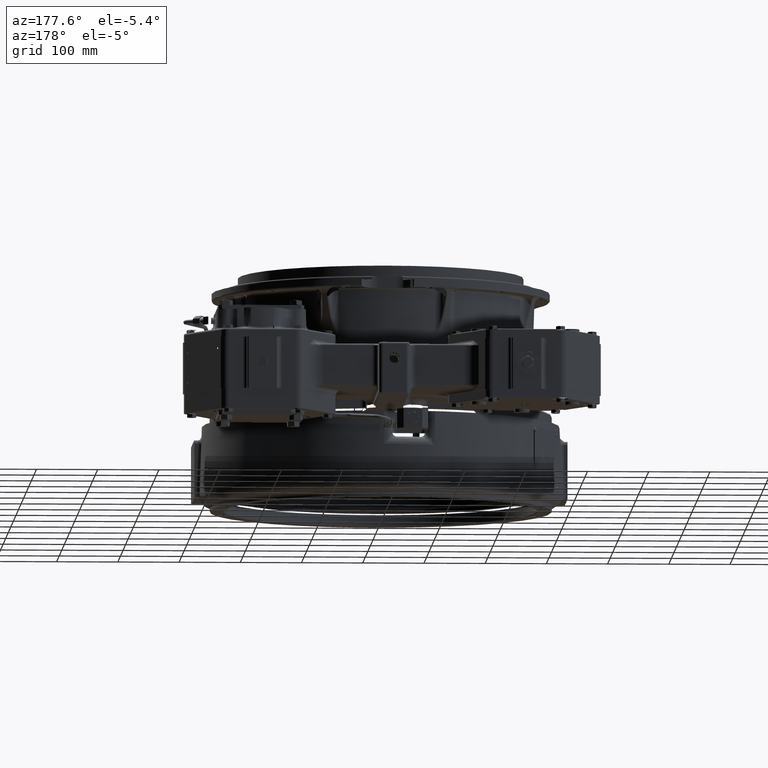
[diagram: clean part render]
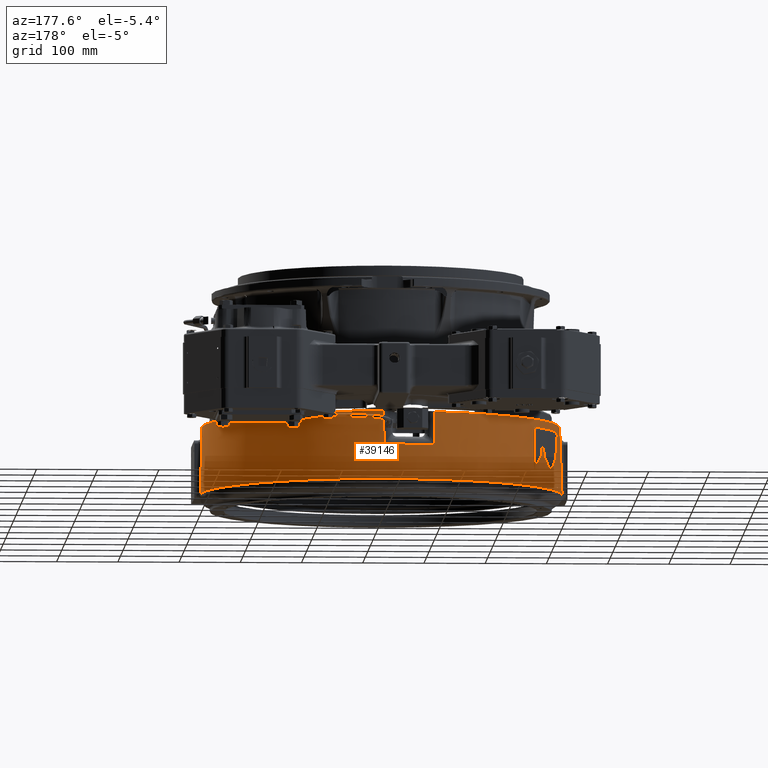
[diagram: same view with one face highlighted and labeled with its STEP entity id]
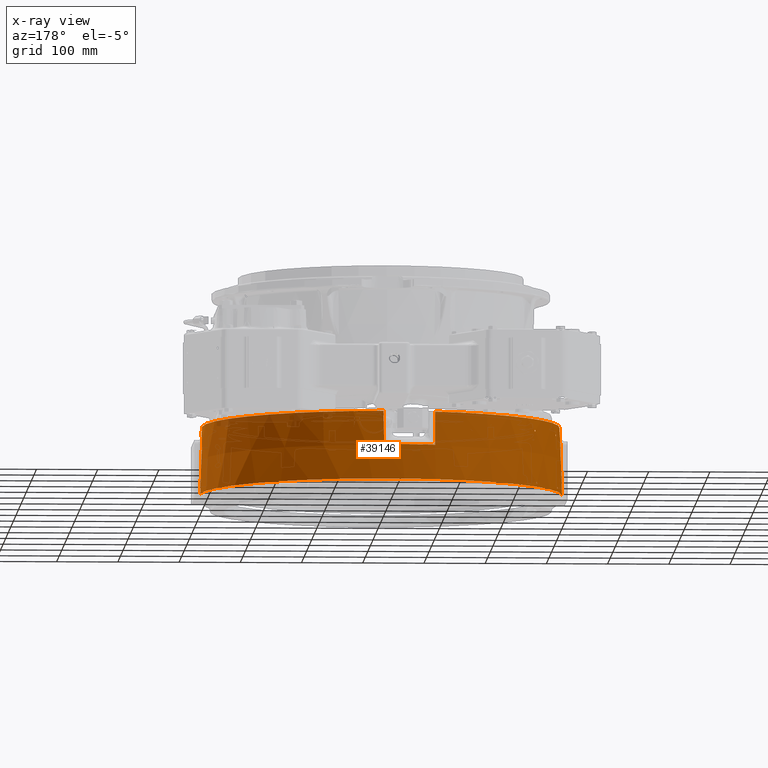
[diagram: x-ray of the same camera — body ghosted, the highlighted face saturated]
A machine part, auxiliary view. The second image highlights one B-rep face of the part: STEP entity #39146.
The next image is the same camera in x-ray: the body ghosted, the highlighted face saturated — about 4% of this face is hidden behind the body in this view.
In plain terms, the highlighted conical surface has half-angle 2 deg.
Its self-contained STEP definition (entity closure, byte-faithful):
#1175 = CARTESIAN_POINT ( 'NONE',  ( -248.2310795710642400, 160.6952887774722600, -244.8580410394653200 ) ) ;
#1362 = CARTESIAN_POINT ( 'NONE',  ( -282.4810289910645300, 76.79121085110732300, -159.7322722219293200 ) ) ;
#1784 = CARTESIAN_POINT ( 'NONE',  ( -249.0490998447991700, 159.5083076344522500, -246.1515629090059200 ) ) ;
#1972 = CARTESIAN_POINT ( 'NONE',  ( -282.9774156129298600, 74.91995739107284200, -159.5758180352805800 ) ) ;
#2308 = CARTESIAN_POINT ( 'NONE',  ( -245.1583362881273200, 159.9475260506838800, -159.4095444052329600 ) ) ;
#2941 = CARTESIAN_POINT ( 'NONE',  ( -246.2823487218860000, 158.2811882321877300, -160.4911535272758300 ) ) ;
#3493 = EDGE_LOOP ( 'NONE', ( #70667, #150261 ) ) ;
#4763 = CARTESIAN_POINT ( 'NONE',  ( -285.4107993798256200, 77.68466299328588300, -247.4033108303462400 ) ) ;
#5105 = CARTESIAN_POINT ( 'NONE',  ( -248.8157685300493500, 159.9438962178882700, -247.2630679887293500 ) ) ;
#5395 = CARTESIAN_POINT ( 'NONE',  ( -285.2354106371217300, 78.06125948225410100, -245.3985358866416700 ) ) ;
#5746 = CARTESIAN_POINT ( 'NONE',  ( -247.7605223392635300, 161.5622181228995900, -247.0844073882408100 ) ) ;
#9039 = CARTESIAN_POINT ( 'NONE',  ( -285.8442943870386400, 75.82823418215667700, -245.5960707215878600 ) ) ;
#10036 = CARTESIAN_POINT ( 'NONE',  ( 7.269480356344789800, 292.7904662752949300, -163.9713294548524200 ) ) ;
#10439 = VERTEX_POINT ( 'NONE', #172734 ) ;
#10684 = CARTESIAN_POINT ( 'NONE',  ( 292.5226765308535200, 13.13367092247886500, -162.1419368228483500 ) ) ;
#11432 = CARTESIAN_POINT ( 'NONE',  ( -246.2793289562569600, 158.3090886952740600, -160.8504921244738700 ) ) ;
#12061 = CARTESIAN_POINT ( 'NONE',  ( -246.0382377409313500, 158.7367023765230800, -161.6756848469181900 ) ) ;
#12683 = CARTESIAN_POINT ( 'NONE',  ( -244.8055382725212600, 160.5769233699860500, -160.8223118990976000 ) ) ;
#12722 = ORIENTED_EDGE ( 'NONE', *, *, #97208, .T. ) ;
#13484 = CARTESIAN_POINT ( 'NONE',  ( -292.5370828830870100, 11.37486340021552100, -160.4395463464026900 ) ) ;
#13629 = CARTESIAN_POINT ( 'NONE',  ( -282.9862046924715700, 75.19355001777556400, -161.8268196025489700 ) ) ;
#14248 = CARTESIAN_POINT ( 'NONE',  ( -282.4598561045433500, 77.04770688616882500, -161.0775242406096500 ) ) ;
#15415 = ORIENTED_EDGE ( 'NONE', *, *, #85330, .T. ) ;
#15842 = ORIENTED_EDGE ( 'NONE', *, *, #42742, .F. ) ;
#15855 = CARTESIAN_POINT ( 'NONE',  ( -248.3759792146182100, 160.4722026820408900, -244.8730770681793000 ) ) ;
#16037 = CARTESIAN_POINT ( 'NONE',  ( -282.5627596765787100, 76.45247503653210700, -159.4523167783800700 ) ) ;
#16131 = AXIS2_PLACEMENT_3D ( 'NONE', #65933, #168001, #80638 ) ;
#16495 = CARTESIAN_POINT ( 'NONE',  ( -249.0217589692765600, 159.5851986253823900, -246.6800843632476600 ) ) ;
#16527 = FACE_BOUND ( 'NONE', #35526, .T. ) ;
#16676 = CARTESIAN_POINT ( 'NONE',  ( -283.0319056051113800, 74.73992904723522200, -159.7665931671810400 ) ) ;
#16684 = EDGE_CURVE ( 'NONE', #108300, #88762, #37986, .T. ) ;
#16767 = CARTESIAN_POINT ( 'NONE',  ( -77.08984144791583000, 281.7437955759366400, -141.6151600000023900 ) ) ;
#16780 = B_SPLINE_CURVE_WITH_KNOTS ( 'NONE', 3,
 ( #74158, #59438, #88792, #1362, #103487, #16037, #118065, #30746, #132800, #45405, #147465, #60080, #162155, #74777, #176898, #89443, #1972, #104107, #16676, #118696, #31367, #133403, #46041, #148085 ),
 .UNSPECIFIED., .F., .F.,
 ( 4, 2, 2, 2, 2, 2, 2, 2, 2, 2, 2, 4 ),
 ( 0.004255834505914921900, 0.004787813819154313100, 0.005319793132393705100, 0.005585782789013367700, 0.005851772445633030400, 0.006117762102252693000, 0.006383751758872355600, 0.006915731072111723300, 0.007181720728731407600, 0.007447710385351091100, 0.007979689698590466600, 0.008511669011829840400 ),
 .UNSPECIFIED. ) ;
#17019 = CARTESIAN_POINT ( 'NONE',  ( -245.2908198433339100, 159.7380422958463300, -159.3120376410559500 ) ) ;
#17617 = CARTESIAN_POINT ( 'NONE',  ( -246.2793289562569600, 158.3090886952740600, -160.8504921244738700 ) ) ;
#19443 = CARTESIAN_POINT ( 'NONE',  ( -285.2916598912373700, 78.07533836051875700, -247.0581915846166800 ) ) ;
#19571 = VERTEX_POINT ( 'NONE', #49151 ) ;
#19914 = EDGE_CURVE ( 'NONE', #88762, #50142, #130242, .T. ) ;
#20192 = AXIS2_PLACEMENT_3D ( 'NONE', #84776, #186909, #99454 ) ;
#20210 = CARTESIAN_POINT ( 'NONE',  ( 6.680919815829843100, 293.9226385520941600, -195.9827495589060500 ) ) ;
#20379 = CARTESIAN_POINT ( 'NONE',  ( -247.6706721643805100, 161.6859847050739300, -246.8662921549973500 ) ) ;
#21287 = CARTESIAN_POINT ( 'NONE',  ( 292.9583516855889200, 16.16045987096027800, -178.9494657647288700 ) ) ;
#21464 = CARTESIAN_POINT ( 'NONE',  ( 7.503192757054843100, 292.3406553333446700, -151.2635059595503200 ) ) ;
#23111 = CARTESIAN_POINT ( 'NONE',  ( -285.2913024892906200, 77.82222981656954600, -245.1372502888278900 ) ) ;
#23763 = CARTESIAN_POINT ( 'NONE',  ( -285.8774761187707400, 75.73679606090729500, -245.8436251453658200 ) ) ;
#24733 = CARTESIAN_POINT ( 'NONE',  ( 7.369362116771349700, 292.5982513761766200, -158.5400570136428100 ) ) ;
#24761 = CARTESIAN_POINT ( 'NONE',  ( 292.6194220130905100, 5.376416717948326400, -157.8723292881510100 ) ) ;
#25385 = VERTEX_POINT ( 'NONE', #144934 ) ;
#25411 = CARTESIAN_POINT ( 'NONE',  ( 292.5253781869854500, 14.31683685431171700, -163.8206175268791500 ) ) ;
#25976 = CARTESIAN_POINT ( 'NONE',  ( -1.075760694077353400E-015, -8.298466514889035400E-016, -252.7189136084946900 ) ) ;
#26105 = CARTESIAN_POINT ( 'NONE',  ( -246.2735963417540600, 158.3237269667910700, -160.9390644535075700 ) ) ;
#26757 = CARTESIAN_POINT ( 'NONE',  ( -245.8346416412919100, 159.0662370015936900, -161.8986175037596200 ) ) ;
#27378 = CARTESIAN_POINT ( 'NONE',  ( -244.7887277087194800, 160.5856453258412300, -160.5568095285889900 ) ) ;
#27535 = CARTESIAN_POINT ( 'NONE',  ( -292.6624390649567400, 16.16011488285836600, -170.4879718040633100 ) ) ;
#28189 = CARTESIAN_POINT ( 'NONE',  ( -292.5543672972949600, 10.00397279828699800, -159.5168247494197300 ) ) ;
#28304 = CARTESIAN_POINT ( 'NONE',  ( -282.8585781052655600, 75.69205608410636900, -161.9731298526065800 ) ) ;
#28921 = CARTESIAN_POINT ( 'NONE',  ( -282.4305807717347500, 77.10850611962695200, -160.7271992351996100 ) ) ;
#29386 = EDGE_CURVE ( 'NONE', #153919, #46007, #72775, .T. ) ;
#29557 = EDGE_CURVE ( 'NONE', #90989, #154844, #58702, .T. ) ;
#30122 = ORIENTED_EDGE ( 'NONE', *, *, #176617, .T. ) ;
#30558 = CARTESIAN_POINT ( 'NONE',  ( -248.5189710546536900, 160.2549284658687700, -244.9392739686511800 ) ) ;
#30746 = CARTESIAN_POINT ( 'NONE',  ( -282.6223290295531600, 76.21674396992668200, -159.3387148372573000 ) ) ;
#31075 = CARTESIAN_POINT ( 'NONE',  ( -244.7953953509892200, 160.5641529882415500, -160.3788892519975800 ) ) ;
#31175 = CARTESIAN_POINT ( 'NONE',  ( -248.9350977182856200, 159.7406047166743400, -246.9934393894988000 ) ) ;
#31360 = CARTESIAN_POINT ( 'NONE',  ( -1.075760694077353400E-015, 1.772238562476307000E-015, -157.7879718040630600 ) ) ;
#31367 = CARTESIAN_POINT ( 'NONE',  ( -283.1026678625697700, 74.52431738024347400, -160.1519630161900800 ) ) ;
#31698 = CARTESIAN_POINT ( 'NONE',  ( -245.5298098105096800, 159.3666478235179800, -159.2515659437276000 ) ) ;
#33657 = B_SPLINE_CURVE_WITH_KNOTS ( 'NONE', 3,
 ( #31075, #103818, #162495, #75113, #177246, #89774, #2308, #104444, #17019, #119059, #31698, #133737, #46381, #148424, #61016, #163112, #75752, #177857, #90380, #2941, #105061, #17617 ),
 .UNSPECIFIED., .F., .F.,
 ( 4, 2, 2, 2, 2, 2, 2, 2, 2, 2, 4 ),
 ( 0.004256396200303041500, 0.004788445725340922400, 0.005320495250378804200, 0.005586520012897715200, 0.005852544775416627100, 0.006384594300454518400, 0.006916643825492408900, 0.007182668588011354600, 0.007448693350530300300, 0.007980742875568181200, 0.008512792400606060400 ),
 .UNSPECIFIED. ) ;
#34151 = CARTESIAN_POINT ( 'NONE',  ( -285.2347982397230300, 78.24173852148133800, -246.7472913943851400 ) ) ;
#34497 = CARTESIAN_POINT ( 'NONE',  ( -248.6551515697893300, 160.2050960577542500, -247.4439415154375900 ) ) ;
#35131 = CARTESIAN_POINT ( 'NONE',  ( -247.6045976820769000, 161.7715089747592000, -246.6213251612696200 ) ) ;
#35375 = AXIS2_PLACEMENT_3D ( 'NONE', #126286, #38941, #140967 ) ;
#35526 = EDGE_LOOP ( 'NONE', ( #178823, #12722 ) ) ;
#35536 = CARTESIAN_POINT ( 'NONE',  ( -295.2422516481493100, 16.16309921479523500, -244.2574193900299500 ) ) ;
#35610 = B_SPLINE_CURVE_WITH_KNOTS ( 'NONE', 3,
 ( #117265, #44605, #161371, #73966, #176093, #88598, #1175, #103302, #15855, #117883, #30558, #132593, #45231, #147283, #59877, #161967, #74607, #176717, #89244, #1784, #103934, #16495, #118508, #31175 ),
 .UNSPECIFIED., .F., .F.,
 ( 4, 2, 2, 2, 2, 2, 2, 2, 2, 2, 2, 4 ),
 ( 0.004255336696244664500, 0.004787253783275245900, 0.005319170870305827200, 0.005585129413821110500, 0.005851087957336394700, 0.006117046500851678000, 0.006383005044366962100, 0.006914922131397575500, 0.007180880674912877900, 0.007446839218428180300, 0.007978756305458793700, 0.008510673392489408900 ),
 .UNSPECIFIED. ) ;
#36008 = CARTESIAN_POINT ( 'NONE',  ( 293.6981309016667900, 16.16132043064519800, -200.1032007481478800 ) ) ;
#37838 = CARTESIAN_POINT ( 'NONE',  ( -285.4089594176089700, 77.35784604837684200, -244.8988512601720800 ) ) ;
#37986 = B_SPLINE_CURVE_WITH_KNOTS ( 'NONE', 3,
 ( #170207, #184341, #53442, #184977, #97487, #10036, #112099, #24733, #126808, #39469 ),
 .UNSPECIFIED., .F., .F.,
 ( 4, 3, 3, 4 ),
 ( 0.0000000000000000000, 0.02844800000471459400, 0.03383126274767133500, 0.04475477127662190500 ),
 .UNSPECIFIED. ) ;
#38474 = CARTESIAN_POINT ( 'NONE',  ( -285.9043620963240100, 75.68332861661257000, -246.1959374026380700 ) ) ;
#38842 = B_SPLINE_CURVE_WITH_KNOTS ( 'NONE', 3,
 ( #56996, #144438, #71736, #173832, #86390, #188505, #101033, #13629, #115647, #28304, #130367, #43003, #145066, #57615, #159744, #72362, #174454, #87004, #189108, #101676, #14248, #116267, #28921, #130993, #43632, #145686 ),
 .UNSPECIFIED., .F., .F.,
 ( 4, 2, 2, 2, 2, 2, 2, 2, 2, 2, 2, 2, 4 ),
 ( 0.0000000000000000000, 0.0005319793132392877200, 0.0007979689698589177100, 0.001063958626478547700, 0.001595937939717887700, 0.002127917252957227600, 0.002393906909576926300, 0.002659896566196624900, 0.002925886222816323500, 0.003191875879436022100, 0.003723855192675464900, 0.003989844849295193400, 0.004255834505914921900 ),
 .UNSPECIFIED. ) ;
#38853 = CARTESIAN_POINT ( 'NONE',  ( 292.6410077139584000, 3.729137522840255200, -157.7879718040633200 ) ) ;
#38941 = DIRECTION ( 'NONE',  ( 0.0000000000000000000, 0.0000000000000000000, 1.000000000000000000 ) ) ;
#39146 = ADVANCED_FACE ( 'NONE', ( #132963, #94150, #55324, #16527, #167180 ), #148863, .T. ) ;
#39469 = CARTESIAN_POINT ( 'NONE',  ( 7.503192757054843100, 292.3406553333446700, -151.2635059595503200 ) ) ;
#39492 = CARTESIAN_POINT ( 'NONE',  ( 292.5970440806231600, 6.974876509240850500, -158.2213606923630800 ) ) ;
#40107 = CARTESIAN_POINT ( 'NONE',  ( 292.5341236554814400, 14.90449123111765700, -164.9109088408055500 ) ) ;
#40977 = CARTESIAN_POINT ( 'NONE',  ( -292.6334495077719000, 16.16008106054804500, -169.6590287758147000 ) ) ;
#41460 = CARTESIAN_POINT ( 'NONE',  ( -245.5490325403282600, 159.5117847470804100, -161.9767339271111800 ) ) ;
#42065 = CARTESIAN_POINT ( 'NONE',  ( -244.7953953509892200, 160.5641529882415500, -160.3788892519975800 ) ) ;
#42236 = CARTESIAN_POINT ( 'NONE',  ( -292.5797270275331800, 15.84923688504947300, -167.6364750794698500 ) ) ;
#42742 = EDGE_CURVE ( 'NONE', #155568, #50142, #65073, .T. ) ;
#42870 = CARTESIAN_POINT ( 'NONE',  ( -292.5745632233127900, 8.547276889414837000, -158.7586346830127300 ) ) ;
#43003 = CARTESIAN_POINT ( 'NONE',  ( -282.7418141870859400, 76.12123750177582300, -161.9308878437420800 ) ) ;
#43632 = CARTESIAN_POINT ( 'NONE',  ( -282.4230536420096200, 77.10055287692144100, -160.4592644935946700 ) ) ;
#44605 = CARTESIAN_POINT ( 'NONE',  ( -247.7220226887782500, 161.5063653576127600, -245.2869955301546600 ) ) ;
#44917 = ORIENTED_EDGE ( 'NONE', *, *, #91570, .T. ) ;
#45231 = CARTESIAN_POINT ( 'NONE',  ( -248.6525021478103400, 160.0549897845644400, -245.0528987439525700 ) ) ;
#45405 = CARTESIAN_POINT ( 'NONE',  ( -282.6874042116430100, 75.96635345084293100, -159.2742231703764700 ) ) ;
#45636 = CARTESIAN_POINT ( 'NONE',  ( -247.6700452941438800, 161.5952891082750400, -245.4318993476691400 ) ) ;
#45886 = CIRCLE ( 'NONE', #108006, 292.6647670330430600 ) ;
#46007 = VERTEX_POINT ( 'NONE', #60855 ) ;
#46029 = DIRECTION ( 'NONE',  ( 0.0000000000000000000, -1.000000000000000000, -9.483743430071031600E-017 ) ) ;
#46041 = CARTESIAN_POINT ( 'NONE',  ( -283.1402352349606400, 74.45410944430420800, -160.6808075537225300 ) ) ;
#46127 = VERTEX_POINT ( 'NONE', #82452 ) ;
#46134 = CARTESIAN_POINT ( 'NONE',  ( -76.97347870946525500, 283.7432566923380400, -195.9827495589060500 ) ) ;
#46381 = CARTESIAN_POINT ( 'NONE',  ( -245.8173574285683300, 158.9308533046528900, -159.3778561506768200 ) ) ;
#47098 = ORIENTED_EDGE ( 'NONE', *, *, #113798, .F. ) ;
#47569 = AXIS2_PLACEMENT_3D ( 'NONE', #25976, #55316, #113972 ) ;
#47893 = AXIS2_PLACEMENT_3D ( 'NONE', #52076, #154170, #66804 ) ;
#48168 = CARTESIAN_POINT ( 'NONE',  ( -285.7480265525944700, 76.43733479631897900, -247.4218973211424400 ) ) ;
#48506 = VERTEX_POINT ( 'NONE', #77734 ) ;
#48795 = CARTESIAN_POINT ( 'NONE',  ( -285.2050536522110600, 78.31665993655977300, -246.4937573727605400 ) ) ;
#49123 = CARTESIAN_POINT ( 'NONE',  ( -248.5201169418221800, 160.4200802757332300, -247.5307191879781800 ) ) ;
#49151 = CARTESIAN_POINT ( 'NONE',  ( -246.2793289562569600, 158.3090886952740600, -160.8504921244738700 ) ) ;
#49544 = B_SPLINE_CURVE_WITH_KNOTS ( 'NONE', 3,
 ( #79396, #94075, #21287, #123393, #36008, #138050, #50613, #152708, #65370, #167427 ),
 .UNSPECIFIED., .F., .F.,
 ( 4, 3, 3, 4 ),
 ( 0.0000000000000000000, 0.01270000000000007800, 0.06350000000000709200, 0.08228121021338372100 ),
 .UNSPECIFIED. ) ;
#49734 = CARTESIAN_POINT ( 'NONE',  ( -247.5540952913505600, 161.8264837162829200, -246.2719438818109300 ) ) ;
#49802 = VECTOR ( 'NONE', #189433, 1000.000000000000100 ) ;
#49942 = ORIENTED_EDGE ( 'NONE', *, *, #136544, .T. ) ;
#50136 = CARTESIAN_POINT ( 'NONE',  ( -294.5024862245383000, 16.16224993562518700, -223.1036839238154200 ) ) ;
#50142 = VERTEX_POINT ( 'NONE', #93437 ) ;
#50613 = CARTESIAN_POINT ( 'NONE',  ( 294.8817628078586500, 16.16268518831962800, -233.9491772410706300 ) ) ;
#52076 = CARTESIAN_POINT ( 'NONE',  ( -1.075760694077353400E-015, 1.772238562476307000E-015, -141.6151600000023900 ) ) ;
#52462 = CARTESIAN_POINT ( 'NONE',  ( -285.5465885221910900, 76.84273729722869500, -244.8577462329930100 ) ) ;
#53094 = CARTESIAN_POINT ( 'NONE',  ( -285.8958329610275100, 75.78708206159282700, -246.7205756162560100 ) ) ;
#53300 = CARTESIAN_POINT ( 'NONE',  ( -244.7953953509892200, 160.5641529882415500, -160.3788892519975800 ) ) ;
#53442 = CARTESIAN_POINT ( 'NONE',  ( 7.029299951284838400, 293.2526215235121200, -177.0324572889598500 ) ) ;
#54106 = CARTESIAN_POINT ( 'NONE',  ( 292.5802330714365700, 8.151817787329845200, -158.6115864738713700 ) ) ;
#54734 = CARTESIAN_POINT ( 'NONE',  ( 292.5490340372268700, 15.38040592183965000, -166.0424146808993800 ) ) ;
#55316 = DIRECTION ( 'NONE',  ( 0.0000000000000000000, 0.0000000000000000000, -1.000000000000000000 ) ) ;
#55324 = FACE_BOUND ( 'NONE', #175680, .T. ) ;
#55390 = EDGE_CURVE ( 'NONE', #109621, #153919, #162900, .T. ) ;
#56085 = CARTESIAN_POINT ( 'NONE',  ( -245.3561577171858200, 159.8037336760496900, -161.9065304585168700 ) ) ;
#56198 = CARTESIAN_POINT ( 'NONE',  ( -248.9350977182856200, 159.7406047166743400, -246.9934393894988000 ) ) ;
#56859 = CARTESIAN_POINT ( 'NONE',  ( -292.5557751123680000, 15.52126894711416000, -166.4484106331449900 ) ) ;
#56996 = CARTESIAN_POINT ( 'NONE',  ( -283.1376266345881200, 74.48826651149511200, -160.8574252428567800 ) ) ;
#57499 = CARTESIAN_POINT ( 'NONE',  ( -292.5967220554478600, 6.997539353029684300, -158.2276968995173000 ) ) ;
#57615 = CARTESIAN_POINT ( 'NONE',  ( -282.6728398857472900, 76.36515389974307800, -161.8426528464951600 ) ) ;
#58702 = B_SPLINE_CURVE_WITH_KNOTS ( 'NONE', 3,
 ( #132755, #107209, #5105, #121864, #34497, #136533, #49123, #151195, #63847, #165925, #78523, #180688, #93187, #5746, #107832, #20379, #122492, #35131, #137161, #49734, #151817, #64479, #166539, #79147, #181316, #93824 ),
 .UNSPECIFIED., .F., .F.,
 ( 4, 2, 2, 2, 2, 2, 2, 2, 2, 2, 2, 2, 4 ),
 ( 0.0000000000000000000, 0.0005319170870304493900, 0.0007978756305456959200, 0.001063834174060942400, 0.001595751261091460600, 0.002127668348121978800, 0.002393626891637289400, 0.002659585435152600100, 0.002925543978667910700, 0.003191502522183221700, 0.003723419609213934900, 0.003989378152729299700, 0.004255336696244664500 ),
 .UNSPECIFIED. ) ;
#59438 = CARTESIAN_POINT ( 'NONE',  ( -282.4273095479247800, 77.05022632435017700, -160.1973718426964400 ) ) ;
#59877 = CARTESIAN_POINT ( 'NONE',  ( -248.8485468515729900, 159.7681988090096800, -245.3340129562116100 ) ) ;
#60080 = CARTESIAN_POINT ( 'NONE',  ( -282.7561912340350400, 75.70804674968681500, -159.2603502233090200 ) ) ;
#60855 = CARTESIAN_POINT ( 'NONE',  ( -292.6410077139584000, 3.729137522840255200, -157.7879718040633200 ) ) ;
#61016 = CARTESIAN_POINT ( 'NONE',  ( -245.9843833172608400, 158.6847836164050700, -159.5738399002290200 ) ) ;
#61303 = ORIENTED_EDGE ( 'NONE', *, *, #100205, .F. ) ;
#62254 = CARTESIAN_POINT ( 'NONE',  ( -285.8340832826594400, 76.08062105732366800, -247.1690797093158400 ) ) ;
#62889 = CARTESIAN_POINT ( 'NONE',  ( -285.6869129565969300, 76.67827885304892300, -247.5171955789518000 ) ) ;
#63512 = CARTESIAN_POINT ( 'NONE',  ( -285.1830790684572900, 78.33785042863782200, -246.0475707335475000 ) ) ;
#63847 = CARTESIAN_POINT ( 'NONE',  ( -248.2796197553751100, 160.7946627072281600, -247.5704189065197100 ) ) ;
#64479 = CARTESIAN_POINT ( 'NONE',  ( -247.5745179572134300, 161.7670075064324400, -245.8297559530659000 ) ) ;
#64887 = CARTESIAN_POINT ( 'NONE',  ( -293.3188468233085500, 16.16087904794550700, -189.2577076932512300 ) ) ;
#65073 = CIRCLE ( 'NONE', #20192, 292.0999999999999700 ) ;
#65370 = CARTESIAN_POINT ( 'NONE',  ( 295.3193595374504500, 16.16318772655407400, -246.4623347960583700 ) ) ;
#65533 = CARTESIAN_POINT ( 'NONE',  ( 7.620535133741213900, 292.1129320701483000, -144.8312925157112000 ) ) ;
#65933 = CARTESIAN_POINT ( 'NONE',  ( -1.075760694077353400E-015, 1.772238562476307000E-015, -195.9827495589060500 ) ) ;
#66804 = DIRECTION ( 'NONE',  ( 1.000000000000000000, 0.0000000000000000000, 0.0000000000000000000 ) ) ;
#67157 = CARTESIAN_POINT ( 'NONE',  ( -285.6390337340996000, 76.51103035946331900, -244.9525628191588900 ) ) ;
#67807 = CARTESIAN_POINT ( 'NONE',  ( -285.8574274980507000, 75.97341119048775200, -247.0265687270838300 ) ) ;
#68179 = CARTESIAN_POINT ( 'NONE',  ( 292.6304318927976200, 4.559066412008203200, -157.7879718040633500 ) ) ;
#68186 = VERTEX_POINT ( 'NONE', #178417 ) ;
#68827 = CARTESIAN_POINT ( 'NONE',  ( 292.5541028444513900, 10.00387214177745700, -159.4931982731132200 ) ) ;
#69451 = CARTESIAN_POINT ( 'NONE',  ( 292.5705603808590400, 15.74720656687745700, -167.2164549590309800 ) ) ;
#70181 = CARTESIAN_POINT ( 'NONE',  ( -246.2330825888403800, 158.4029150952423200, -161.1897780939641200 ) ) ;
#70667 = ORIENTED_EDGE ( 'NONE', *, *, #120572, .T. ) ;
#70823 = CARTESIAN_POINT ( 'NONE',  ( -245.2191356728122000, 160.0073141251049800, -161.8032943881413200 ) ) ;
#71576 = EDGE_CURVE ( 'NONE', #162221, #25385, #45886, .T. ) ;
#71601 = B_SPLINE_CURVE_WITH_KNOTS ( 'NONE', 3,
 ( #11432, #26105, #157543, #70181, #172257, #84832, #186978, #99508, #12061, #114115, #26757, #128816, #41460, #143508, #56085, #158211, #70823, #172882, #85475, #187607, #100133, #12683, #114763, #27378, #129448, #42065 ),
 .UNSPECIFIED., .F., .F.,
 ( 4, 2, 2, 2, 2, 2, 2, 2, 2, 2, 2, 2, 4 ),
 ( 0.0000000000000000000, 0.0002660247625189390600, 0.0005320495250378781200, 0.0007980742875568171900, 0.001064099050075756200, 0.001596148575113576000, 0.002128198100151395400, 0.002394222862670369300, 0.002660247625189342700, 0.003192297150227246600, 0.003724346675265150100, 0.003990371437784095800, 0.004256396200303041500 ),
 .UNSPECIFIED. ) ;
#71617 = CARTESIAN_POINT ( 'NONE',  ( -292.5330642992320200, 14.92473521234355600, -164.9072981503250000 ) ) ;
#71736 = CARTESIAN_POINT ( 'NONE',  ( -283.1232499937767700, 74.59000358919365700, -161.2005469399453300 ) ) ;
#71767 = VERTEX_POINT ( 'NONE', #53300 ) ;
#71783 = CARTESIAN_POINT ( 'NONE',  ( 292.6624390649567400, 16.16011488285836600, -170.4879718040633100 ) ) ;
#72243 = CARTESIAN_POINT ( 'NONE',  ( -292.6193800419342800, 5.379722396081861600, -157.8720382917478000 ) ) ;
#72362 = CARTESIAN_POINT ( 'NONE',  ( -282.6082860067523900, 76.58570823697562000, -161.7078906171271600 ) ) ;
#72775 = B_SPLINE_CURVE_WITH_KNOTS ( 'NONE', 3,
 ( #27535, #40977, #129607, #42236, #144313, #56859, #159002, #71617, #173700, #86251, #188385, #100931, #13484, #115519, #28189, #130250, #42870, #144927, #57499, #159616, #72243, #174323, #86885 ),
 .UNSPECIFIED., .F., .F.,
 ( 4, 2, 2, 2, 2, 2, 2, 2, 1, 2, 2, 4 ),
 ( 0.0000000000000000000, 0.002488322779238618800, 0.003732484168857928800, 0.004976645558477238400, 0.007464968337715856800, 0.009953291116954475100, 0.01244161389619309300, 0.01368577528581240200, 0.01492993667543171200, 0.01617409806505102100, 0.01741825945467033100, 0.01990658223390894000 ),
 .UNSPECIFIED. ) ;
#73040 = CARTESIAN_POINT ( 'NONE',  ( -77.08984144791583000, 281.7437955759366400, -141.6151600000023900 ) ) ;
#73966 = CARTESIAN_POINT ( 'NONE',  ( -247.9495779557241000, 161.1367877877215200, -244.9741608156630500 ) ) ;
#74158 = CARTESIAN_POINT ( 'NONE',  ( -282.4244722773146900, 77.08377735939767200, -160.3719669432952600 ) ) ;
#74607 = CARTESIAN_POINT ( 'NONE',  ( -248.9586708149969100, 159.6161546703119400, -245.6375100900114000 ) ) ;
#74777 = CARTESIAN_POINT ( 'NONE',  ( -282.8492282843937500, 75.36706661688445800, -159.3134384067573700 ) ) ;
#75113 = CARTESIAN_POINT ( 'NONE',  ( -244.9348400828336000, 160.3103670076054100, -159.7356066981277800 ) ) ;
#75497 = AXIS2_PLACEMENT_3D ( 'NONE', #31360, #133395, #46029 ) ;
#75739 = DIRECTION ( 'NONE',  ( 0.0000000000000000000, -1.177520686924252000E-016, 1.000000000000000000 ) ) ;
#75752 = CARTESIAN_POINT ( 'NONE',  ( -246.0926754020450200, 158.5290040947520800, -159.7633342818259100 ) ) ;
#77482 = ORIENTED_EDGE ( 'NONE', *, *, #96954, .T. ) ;
#77577 = CARTESIAN_POINT ( 'NONE',  ( -285.5975034230272600, 77.01868328897248300, -247.5761024110271100 ) ) ;
#77734 = CARTESIAN_POINT ( 'NONE',  ( -285.8574274980507000, 75.97341119048775200, -247.0265687270838300 ) ) ;
#78205 = CARTESIAN_POINT ( 'NONE',  ( -285.1980680107277000, 78.23810573698722200, -245.7053950903513200 ) ) ;
#78523 = CARTESIAN_POINT ( 'NONE',  ( -247.9956311226572400, 161.2227202741660500, -247.4210435345770000 ) ) ;
#79147 = CARTESIAN_POINT ( 'NONE',  ( -247.6218439446292600, 161.6788047950499000, -245.5831247632325200 ) ) ;
#79396 = CARTESIAN_POINT ( 'NONE',  ( 292.6624390649567400, 16.16011488285836600, -170.4879718040633100 ) ) ;
#79554 = CARTESIAN_POINT ( 'NONE',  ( -292.8812423326077700, 16.16037016209462600, -176.7445504099355300 ) ) ;
#80638 = DIRECTION ( 'NONE',  ( -1.000000000000000000, 0.0000000000000000000, 0.0000000000000000000 ) ) ;
#81036 = LINE ( 'NONE', #136920, #119786 ) ;
#81642 = B_SPLINE_CURVE_WITH_KNOTS ( 'NONE', 3,
 ( #38853, #68179, #24761, #126830, #39492, #141519, #54106, #156183, #68827, #170861, #83483, #185645, #98134, #10684, #112769, #25411, #127444, #40107, #142171, #54734, #156810, #69451, #171537, #84108, #186270, #98785 ),
 .UNSPECIFIED., .F., .F.,
 ( 4, 2, 2, 2, 2, 2, 2, 2, 2, 2, 2, 2, 4 ),
 ( 0.0000000000000000000, 0.002489954195803574300, 0.003734931293705361600, 0.004979908391607148500, 0.007469862587410723200, 0.008714839685312508400, 0.009959816783214295300, 0.01244977097901781200, 0.01369474807691957100, 0.01493972517482132800, 0.01618470227272308600, 0.01742967937062484700, 0.01991963356642844500 ),
 .UNSPECIFIED. ) ;
#81659 = CARTESIAN_POINT ( 'NONE',  ( 292.0999999999999700, 3.517965733354493100E-014, -141.6151600000023900 ) ) ;
#81853 = CARTESIAN_POINT ( 'NONE',  ( -285.7043224305825800, 76.28320776218299700, -245.0732990455467200 ) ) ;
#82452 = CARTESIAN_POINT ( 'NONE',  ( -283.1376266345881200, 74.48826651149511200, -160.8574252428567800 ) ) ;
#83019 = CARTESIAN_POINT ( 'NONE',  ( -292.6647670330430100, -8.298466514889035400E-016, -157.7879718040630600 ) ) ;
#83483 = CARTESIAN_POINT ( 'NONE',  ( 292.5377081301022000, 11.34525824976858700, -160.4421183488442800 ) ) ;
#83905 = ORIENTED_EDGE ( 'NONE', *, *, #29557, .T. ) ;
#84108 = CARTESIAN_POINT ( 'NONE',  ( 292.6091144247959600, 16.08135254417205600, -168.8380157054876300 ) ) ;
#84607 = VERTEX_POINT ( 'NONE', #83019 ) ;
#84776 = CARTESIAN_POINT ( 'NONE',  ( -1.075760694077353400E-015, 1.772238562476307000E-015, -141.6151600000023900 ) ) ;
#84832 = CARTESIAN_POINT ( 'NONE',  ( -246.1653356678364400, 158.5230402272517800, -161.4201592786467400 ) ) ;
#85330 = EDGE_CURVE ( 'NONE', #128705, #68186, #49544, .T. ) ;
#85475 = CARTESIAN_POINT ( 'NONE',  ( -245.0152965852398700, 160.3024171806550300, -161.5387504446783600 ) ) ;
#86251 = CARTESIAN_POINT ( 'NONE',  ( -292.5215300244960300, 13.65867091526308000, -162.8031421699213300 ) ) ;
#86390 = CARTESIAN_POINT ( 'NONE',  ( -283.0811786072151800, 74.78940043651378700, -161.4925220602077000 ) ) ;
#86885 = CARTESIAN_POINT ( 'NONE',  ( -292.6410077139584000, 3.729137522840255200, -157.7879718040633200 ) ) ;
#87004 = CARTESIAN_POINT ( 'NONE',  ( -282.5499024404280700, 76.77711598923299600, -161.5299115983571300 ) ) ;
#87444 = EDGE_CURVE ( 'NONE', #106724, #46127, #16780, .T. ) ;
#87787 = EDGE_CURVE ( 'NONE', #155568, #162221, #138602, .T. ) ;
#88598 = CARTESIAN_POINT ( 'NONE',  ( -248.1821785579660400, 160.7712219641284400, -244.8645839400791100 ) ) ;
#88762 = VERTEX_POINT ( 'NONE', #101619 ) ;
#88792 = CARTESIAN_POINT ( 'NONE',  ( -282.4397416929770100, 76.98225782692325900, -160.0283752626920100 ) ) ;
#89244 = CARTESIAN_POINT ( 'NONE',  ( -249.0153070211448500, 159.5440754038969000, -245.8892370914802800 ) ) ;
#89443 = CARTESIAN_POINT ( 'NONE',  ( -282.9576598857134400, 74.98711884836858100, -159.5213256137267600 ) ) ;
#89774 = CARTESIAN_POINT ( 'NONE',  ( -245.1162648188215500, 160.0147887277791200, -159.4533843023052400 ) ) ;
#90380 = CARTESIAN_POINT ( 'NONE',  ( -246.2288643268501000, 158.3420885438212100, -160.1458980116973100 ) ) ;
#90989 = VERTEX_POINT ( 'NONE', #56198 ) ;
#91570 = EDGE_CURVE ( 'NONE', #48506, #168070, #163755, .T. ) ;
#92229 = CARTESIAN_POINT ( 'NONE',  ( -285.4568350614542900, 77.52572840360414800, -247.4808932626325500 ) ) ;
#92866 = CARTESIAN_POINT ( 'NONE',  ( -285.2235041298880600, 78.11409220075208300, -245.4690342847519600 ) ) ;
#93187 = CARTESIAN_POINT ( 'NONE',  ( -247.8321629320644800, 161.4604542561997700, -247.2118400942823900 ) ) ;
#93289 = CARTESIAN_POINT ( 'NONE',  ( -285.2354106371217300, 78.06125948225410100, -245.3985358866416700 ) ) ;
#93437 = CARTESIAN_POINT ( 'NONE',  ( 7.677784353942272800, 291.9990781276789000, -141.6151600000023900 ) ) ;
#93824 = CARTESIAN_POINT ( 'NONE',  ( -247.6700452941438800, 161.5952891082750400, -245.4318993476691400 ) ) ;
#94075 = CARTESIAN_POINT ( 'NONE',  ( 292.8103955314249400, 16.16028750465768800, -174.7187187789299400 ) ) ;
#94150 = FACE_BOUND ( 'NONE', #99585, .T. ) ;
#94871 = CIRCLE ( 'NONE', #16131, 293.9985580628084600 ) ;
#95868 = CARTESIAN_POINT ( 'NONE',  ( -285.2354106371217300, 78.06125948225410100, -245.3985358866416700 ) ) ;
#96489 = CARTESIAN_POINT ( 'NONE',  ( -285.8010662387666800, 75.95968911114923100, -245.3654009519936200 ) ) ;
#96954 = EDGE_CURVE ( 'NONE', #25385, #128705, #81642, .T. ) ;
#97208 = EDGE_CURVE ( 'NONE', #71767, #19571, #33657, .T. ) ;
#97487 = CARTESIAN_POINT ( 'NONE',  ( 7.236508078172233700, 292.8539149645121100, -165.7643251357083900 ) ) ;
#97857 = CIRCLE ( 'NONE', #35375, 295.9798285694300800 ) ;
#98134 = CARTESIAN_POINT ( 'NONE',  ( 292.5285579285059600, 12.27815499241760300, -161.2590075330490700 ) ) ;
#98411 = EDGE_CURVE ( 'NONE', #68186, #109621, #97857, .T. ) ;
#98729 = ORIENTED_EDGE ( 'NONE', *, *, #19914, .T. ) ;
#98785 = CARTESIAN_POINT ( 'NONE',  ( 292.6624390649567400, 16.16011488285836600, -170.4879718040633100 ) ) ;
#99454 = DIRECTION ( 'NONE',  ( 1.000000000000000000, 0.0000000000000000000, 0.0000000000000000000 ) ) ;
#99508 = CARTESIAN_POINT ( 'NONE',  ( -246.0740435739707000, 158.6774242035612900, -161.6173102555225700 ) ) ;
#99585 = EDGE_LOOP ( 'NONE', ( #44917, #49942 ) ) ;
#100133 = CARTESIAN_POINT ( 'NONE',  ( -244.8463634629872600, 160.5312883335131700, -161.0832253068384400 ) ) ;
#100205 = EDGE_CURVE ( 'NONE', #134857, #10439, #133676, .T. ) ;
#100931 = CARTESIAN_POINT ( 'NONE',  ( -292.5304679817188000, 11.99822881088461200, -160.9694116882950300 ) ) ;
#101033 = CARTESIAN_POINT ( 'NONE',  ( -283.0376163621495500, 74.97926947950993800, -161.6770527718378800 ) ) ;
#101619 = CARTESIAN_POINT ( 'NONE',  ( 7.503192757054843100, 292.3406553333446700, -151.2635059595503200 ) ) ;
#101676 = CARTESIAN_POINT ( 'NONE',  ( -282.4844590323845100, 76.97947234672913900, -161.2428246900500100 ) ) ;
#102679 = ORIENTED_EDGE ( 'NONE', *, *, #29386, .T. ) ;
#103302 = CARTESIAN_POINT ( 'NONE',  ( -248.3278936569047300, 160.5459195465088800, -244.8624158478555200 ) ) ;
#103487 = CARTESIAN_POINT ( 'NONE',  ( -282.5102858823236100, 76.66625726765200000, -159.6023037939204700 ) ) ;
#103818 = CARTESIAN_POINT ( 'NONE',  ( -244.8069314778885300, 160.5354228404661100, -160.2038917580863400 ) ) ;
#103934 = CARTESIAN_POINT ( 'NONE',  ( -249.0527497893832600, 159.5144115455113400, -246.3338311483955200 ) ) ;
#104107 = CARTESIAN_POINT ( 'NONE',  ( -283.0144615748538400, 74.79659531026374000, -159.6980194894762000 ) ) ;
#104444 = CARTESIAN_POINT ( 'NONE',  ( -245.2455060293026200, 159.8093327502128600, -159.3391140698383000 ) ) ;
#105061 = CARTESIAN_POINT ( 'NONE',  ( -246.2907941852628800, 158.2798121522401400, -160.6733474664066000 ) ) ;
#106724 = VERTEX_POINT ( 'NONE', #168407 ) ;
#106864 = CARTESIAN_POINT ( 'NONE',  ( -285.3286190179825900, 77.95809257861812100, -247.1929255172245000 ) ) ;
#107127 = ORIENTED_EDGE ( 'NONE', *, *, #110447, .T. ) ;
#107209 = CARTESIAN_POINT ( 'NONE',  ( -248.8831748559255700, 159.8309989421027000, -247.1400388414406000 ) ) ;
#107612 = VERTEX_POINT ( 'NONE', #151466 ) ;
#107832 = CARTESIAN_POINT ( 'NONE',  ( -247.7282112544358500, 161.6073365837724500, -247.0153118598492500 ) ) ;
#108006 = AXIS2_PLACEMENT_3D ( 'NONE', #163095, #75739, #177843 ) ;
#108300 = VERTEX_POINT ( 'NONE', #20210 ) ;
#108880 = CARTESIAN_POINT ( 'NONE',  ( 7.562345430350252900, 292.2267915332480500, -148.0474082389736700 ) ) ;
#109398 = ORIENTED_EDGE ( 'NONE', *, *, #98411, .T. ) ;
#109621 = VERTEX_POINT ( 'NONE', #168216 ) ;
#110447 = EDGE_CURVE ( 'NONE', #46007, #84607, #154061, .T. ) ;
#110488 = CARTESIAN_POINT ( 'NONE',  ( -285.2592236515891400, 77.95559404525820900, -245.2575390904211200 ) ) ;
#111137 = CARTESIAN_POINT ( 'NONE',  ( -285.8566692562179700, 75.79250456986902400, -245.6763741103771700 ) ) ;
#112099 = CARTESIAN_POINT ( 'NONE',  ( 7.302453760500786700, 292.7270114510470800, -162.1783340118354600 ) ) ;
#112769 = CARTESIAN_POINT ( 'NONE',  ( 292.5215106203533000, 13.64351782112457900, -162.7821877034107600 ) ) ;
#113798 = EDGE_CURVE ( 'NONE', #10439, #84607, #81036, .T. ) ;
#113972 = DIRECTION ( 'NONE',  ( -1.000000000000000000, 0.0000000000000000000, 0.0000000000000000000 ) ) ;
#114115 = CARTESIAN_POINT ( 'NONE',  ( -245.9236525672174600, 158.9239231042300800, -161.8265450045959100 ) ) ;
#114763 = CARTESIAN_POINT ( 'NONE',  ( -244.7967502302989500, 160.5847233957403300, -160.7344194871088200 ) ) ;
#115519 = CARTESIAN_POINT ( 'NONE',  ( -292.5496916629213600, 10.35802467916486900, -159.7363638253221400 ) ) ;
#115647 = CARTESIAN_POINT ( 'NONE',  ( -282.9454837693121500, 75.35642032412248200, -161.8985248642162300 ) ) ;
#116267 = CARTESIAN_POINT ( 'NONE',  ( -282.4361520088925800, 77.09978511194474000, -160.8153179522291800 ) ) ;
#117265 = CARTESIAN_POINT ( 'NONE',  ( -247.6700452941438800, 161.5952891082750400, -245.4318993476691400 ) ) ;
#117883 = CARTESIAN_POINT ( 'NONE',  ( -248.4715108191000500, 160.3267107068276700, -244.9113758985639900 ) ) ;
#118065 = CARTESIAN_POINT ( 'NONE',  ( -282.5820215879392100, 76.37543255741154300, -159.4087937756563300 ) ) ;
#118508 = CARTESIAN_POINT ( 'NONE',  ( -248.9870205806458000, 159.6502104912459600, -246.8468399375570100 ) ) ;
#118696 = CARTESIAN_POINT ( 'NONE',  ( -283.0784212368645900, 74.59353914266387200, -159.9849432588913800 ) ) ;
#118789 = CARTESIAN_POINT ( 'NONE',  ( -77.07614372842098800, 282.4036687327497400, -159.7379783454634900 ) ) ;
#119059 = CARTESIAN_POINT ( 'NONE',  ( -245.4319543290276000, 159.5175474526359400, -159.2553383549135900 ) ) ;
#119786 = VECTOR ( 'NONE', #167566, 1000.000000000000100 ) ;
#120572 = EDGE_CURVE ( 'NONE', #46127, #106724, #38842, .T. ) ;
#120903 = CARTESIAN_POINT ( 'NONE',  ( -285.8574274980507000, 75.97341119048775200, -247.0265687270838300 ) ) ;
#121330 = ORIENTED_EDGE ( 'NONE', *, *, #71576, .T. ) ;
#121552 = CARTESIAN_POINT ( 'NONE',  ( -285.2477517837758100, 78.20534107463832600, -246.8293102996230700 ) ) ;
#121864 = CARTESIAN_POINT ( 'NONE',  ( -248.6970337419642200, 160.1375324803257700, -247.4046308507074900 ) ) ;
#122492 = CARTESIAN_POINT ( 'NONE',  ( -247.6454758251011600, 161.7194407429244100, -246.7859811586341200 ) ) ;
#122536 = CARTESIAN_POINT ( 'NONE',  ( -292.6624390649567400, 16.16011488285836600, -170.4879718040633100 ) ) ;
#122897 = CARTESIAN_POINT ( 'NONE',  ( -295.3902044279001900, 16.16326882124874200, -248.4881664939477700 ) ) ;
#122925 = EDGE_LOOP ( 'NONE', ( #15842, #174455, #121330, #77482, #15415, #109398, #147753, #102679, #107127, #47098, #61303, #30122, #141598, #159407, #98729 ) ) ;
#123393 = CARTESIAN_POINT ( 'NONE',  ( 293.1063075288045100, 16.16063198289726100, -183.1802127614124300 ) ) ;
#125202 = CARTESIAN_POINT ( 'NONE',  ( -285.3657901832960400, 77.52487608007636800, -244.9587718394750800 ) ) ;
#125824 = CARTESIAN_POINT ( 'NONE',  ( -285.8859563672953100, 75.71677384778377000, -245.9315932494183100 ) ) ;
#126286 = CARTESIAN_POINT ( 'NONE',  ( -1.075760694077353400E-015, -8.298466514889035400E-016, -252.7189136084946900 ) ) ;
#126808 = CARTESIAN_POINT ( 'NONE',  ( 7.436275109269770300, 292.4694660403821400, -154.9017809946135700 ) ) ;
#126830 = CARTESIAN_POINT ( 'NONE',  ( 292.6026680315641200, 6.578058800375775800, -158.1189741188149800 ) ) ;
#127444 = CARTESIAN_POINT ( 'NONE',  ( 292.5276254936991300, 14.52594689362976200, -164.1804588674272600 ) ) ;
#128705 = VERTEX_POINT ( 'NONE', #71783 ) ;
#128816 = CARTESIAN_POINT ( 'NONE',  ( -245.6482531424674100, 159.3587199077544200, -161.9732912127407200 ) ) ;
#129448 = CARTESIAN_POINT ( 'NONE',  ( -244.7896272875395900, 160.5785180621293200, -160.4663879989532500 ) ) ;
#129607 = CARTESIAN_POINT ( 'NONE',  ( -292.6092411275337800, 16.08113555067170700, -168.8413385698937600 ) ) ;
#130242 = B_SPLINE_CURVE_WITH_KNOTS ( 'NONE', 3,
 ( #21464, #108880, #65533, #167623 ),
 .UNSPECIFIED., .F., .F.,
 ( 4, 4 ),
 ( 0.0000000000000000000, 0.009655968981322316000 ),
 .UNSPECIFIED. ) ;
#130250 = CARTESIAN_POINT ( 'NONE',  ( -292.5642040633952100, 9.283455399000866100, -159.1186004578034100 ) ) ;
#130367 = CARTESIAN_POINT ( 'NONE',  ( -282.8114482115889200, 75.86845710600475500, -161.9767951897995900 ) ) ;
#130933 = EDGE_CURVE ( 'NONE', #107612, #108300, #94871, .T. ) ;
#130993 = CARTESIAN_POINT ( 'NONE',  ( -282.4240065825378000, 77.10903275236982800, -160.5495582393583600 ) ) ;
#132593 = CARTESIAN_POINT ( 'NONE',  ( -248.6091963599386600, 160.1194816163418000, -245.0099586325177900 ) ) ;
#132755 = CARTESIAN_POINT ( 'NONE',  ( -248.9350977182856200, 159.7406047166743400, -246.9934393894988000 ) ) ;
#132800 = CARTESIAN_POINT ( 'NONE',  ( -282.6434079765596200, 76.13492939810514300, -159.3117988390792400 ) ) ;
#132963 = FACE_BOUND ( 'NONE', #3493, .T. ) ;
#133395 = DIRECTION ( 'NONE',  ( 0.0000000000000000000, -1.177520686924252000E-016, 1.000000000000000000 ) ) ;
#133403 = CARTESIAN_POINT ( 'NONE',  ( -283.1334234300169300, 74.45499536548203400, -160.4985954252439900 ) ) ;
#133501 = CARTESIAN_POINT ( 'NONE',  ( -77.03810850128108700, 283.0700095289093400, -177.8605328376560000 ) ) ;
#133676 = CIRCLE ( 'NONE', #47893, 292.0999999999999700 ) ;
#133737 = CARTESIAN_POINT ( 'NONE',  ( -245.7243136129866100, 159.0705564354429400, -159.3134077243725000 ) ) ;
#134857 = VERTEX_POINT ( 'NONE', #73040 ) ;
#135560 = CARTESIAN_POINT ( 'NONE',  ( -285.8032516051161500, 76.21246864363210700, -247.2873437534688000 ) ) ;
#136193 = CARTESIAN_POINT ( 'NONE',  ( -285.2135398503980900, 78.29711809379161000, -246.5799015697540700 ) ) ;
#136533 = CARTESIAN_POINT ( 'NONE',  ( -248.5668301967041900, 160.3461618756659300, -247.5070376785258200 ) ) ;
#136544 = EDGE_CURVE ( 'NONE', #168070, #48506, #170563, .T. ) ;
#136920 = CARTESIAN_POINT ( 'NONE',  ( -295.9798285694300800, -8.298466514889035400E-016, -252.7189136084946900 ) ) ;
#137161 = CARTESIAN_POINT ( 'NONE',  ( -247.5885508610857100, 161.7906290701878900, -246.5361753595145700 ) ) ;
#137562 = CARTESIAN_POINT ( 'NONE',  ( -295.0942985634271200, 16.16292935896122500, -240.0266722967872700 ) ) ;
#138050 = CARTESIAN_POINT ( 'NONE',  ( 294.2899492995094900, 16.16200480867509300, -217.0261889090342900 ) ) ;
#138602 = LINE ( 'NONE', #174763, #49802 ) ;
#139877 = CARTESIAN_POINT ( 'NONE',  ( -285.4989571951650800, 77.01830531476409200, -244.8486614361501700 ) ) ;
#140512 = CARTESIAN_POINT ( 'NONE',  ( -285.9076194691153300, 75.69585388166761700, -246.3778312610459700 ) ) ;
#140967 = DIRECTION ( 'NONE',  ( 1.000000000000000000, 0.0000000000000000000, 0.0000000000000000000 ) ) ;
#141519 = CARTESIAN_POINT ( 'NONE',  ( 292.5858384918876100, 7.760917943041615500, -158.4672146026016400 ) ) ;
#141598 = ORIENTED_EDGE ( 'NONE', *, *, #130933, .T. ) ;
#142171 = CARTESIAN_POINT ( 'NONE',  ( 292.5383770712935500, 15.07522506467392500, -165.2833621435981100 ) ) ;
#143508 = CARTESIAN_POINT ( 'NONE',  ( -245.4045249736285000, 159.7309974244247400, -161.9306974324487100 ) ) ;
#144313 = CARTESIAN_POINT ( 'NONE',  ( -292.5710143261468400, 15.75288741726802600, -167.2381844874196600 ) ) ;
#144438 = CARTESIAN_POINT ( 'NONE',  ( -283.1350180342157000, 74.52242357868600200, -161.0340429319910200 ) ) ;
#144927 = CARTESIAN_POINT ( 'NONE',  ( -292.5855619966782200, 7.780235581069167200, -158.4740502727158900 ) ) ;
#144934 = CARTESIAN_POINT ( 'NONE',  ( 292.6410077139584000, 3.729137522840255200, -157.7879718040633200 ) ) ;
#145066 = CARTESIAN_POINT ( 'NONE',  ( -282.7183089842672000, 76.20524696334953800, -161.9067483211046600 ) ) ;
#145686 = CARTESIAN_POINT ( 'NONE',  ( -282.4244722773146900, 77.08377735939767200, -160.3719669432952600 ) ) ;
#147283 = CARTESIAN_POINT ( 'NONE',  ( -248.7768283988598100, 159.8715762720426300, -245.2053359394176100 ) ) ;
#147465 = CARTESIAN_POINT ( 'NONE',  ( -282.7103643962017300, 75.87945856664916300, -159.2637911556209600 ) ) ;
#147753 = ORIENTED_EDGE ( 'NONE', *, *, #55390, .T. ) ;
#148085 = CARTESIAN_POINT ( 'NONE',  ( -283.1376266345881200, 74.48826651149511200, -160.8574252428567800 ) ) ;
#148424 = CARTESIAN_POINT ( 'NONE',  ( -245.9447027927437500, 158.7428024486342800, -159.5198034844881600 ) ) ;
#148863 = CONICAL_SURFACE ( 'NONE', #47569, 295.9798285694300800, 0.03490658503988652800 ) ;
#150244 = CARTESIAN_POINT ( 'NONE',  ( -285.7284368303199400, 76.51552597877191900, -247.4588501908956200 ) ) ;
#150261 = ORIENTED_EDGE ( 'NONE', *, *, #87444, .T. ) ;
#150862 = CARTESIAN_POINT ( 'NONE',  ( -285.1862132461873200, 78.35018816247250600, -246.2277785743941100 ) ) ;
#151195 = CARTESIAN_POINT ( 'NONE',  ( -248.3789073251008100, 160.6415584947473300, -247.5751665725409500 ) ) ;
#151466 = CARTESIAN_POINT ( 'NONE',  ( -76.97347870946525500, 283.7432566923380400, -195.9827495589060500 ) ) ;
#151817 = CARTESIAN_POINT ( 'NONE',  ( -247.5505154495213800, 161.8204516479465000, -246.0916025700201400 ) ) ;
#152229 = CARTESIAN_POINT ( 'NONE',  ( -293.9106690062621400, 16.16156652233051400, -206.1806957216391500 ) ) ;
#152708 = CARTESIAN_POINT ( 'NONE',  ( 295.1005615068236200, 16.16293673070405400, -240.2057560068672600 ) ) ;
#153919 = VERTEX_POINT ( 'NONE', #122536 ) ;
#154061 = CIRCLE ( 'NONE', #75497, 292.6647670330430600 ) ;
#154170 = DIRECTION ( 'NONE',  ( 0.0000000000000000000, 0.0000000000000000000, 1.000000000000000000 ) ) ;
#154524 = CARTESIAN_POINT ( 'NONE',  ( -285.6159072895901000, 76.59323232392873100, -244.9222220900575500 ) ) ;
#154844 = VERTEX_POINT ( 'NONE', #45636 ) ;
#155163 = CARTESIAN_POINT ( 'NONE',  ( -285.8807717134421300, 75.86620132365180800, -246.8840577448518200 ) ) ;
#155568 = VERTEX_POINT ( 'NONE', #81659 ) ;
#156183 = CARTESIAN_POINT ( 'NONE',  ( 292.5640887685389700, 9.287930686590218700, -159.0976526769810800 ) ) ;
#156810 = CARTESIAN_POINT ( 'NONE',  ( 292.5554373674555700, 15.51485168109445700, -166.4290144126595400 ) ) ;
#157543 = CARTESIAN_POINT ( 'NONE',  ( -246.2631243806792700, 158.3455403261176900, -161.0245854506065100 ) ) ;
#158211 = CARTESIAN_POINT ( 'NONE',  ( -245.2636486394532900, 159.9416050875669600, -161.8428122841658000 ) ) ;
#159002 = CARTESIAN_POINT ( 'NONE',  ( -292.5492281348517200, 15.38512332266373900, -166.0550457123384500 ) ) ;
#159407 = ORIENTED_EDGE ( 'NONE', *, *, #16684, .T. ) ;
#159616 = CARTESIAN_POINT ( 'NONE',  ( -292.6024001580756200, 6.597119930269444800, -158.1233837703158300 ) ) ;
#159744 = CARTESIAN_POINT ( 'NONE',  ( -282.6508299699709100, 76.44125345516442800, -161.8028980719587100 ) ) ;
#159823 = EDGE_CURVE ( 'NONE', #19571, #71767, #71601, .T. ) ;
#161371 = CARTESIAN_POINT ( 'NONE',  ( -247.7910180864966200, 161.3925324365797000, -245.1620550000055200 ) ) ;
#161967 = CARTESIAN_POINT ( 'NONE',  ( -248.9343020866223000, 159.6490715571293300, -245.5588292682372200 ) ) ;
#162155 = CARTESIAN_POINT ( 'NONE',  ( -282.7792985222922700, 75.62260005383781400, -159.2670691465937700 ) ) ;
#162221 = VERTEX_POINT ( 'NONE', #171493 ) ;
#162495 = CARTESIAN_POINT ( 'NONE',  ( -244.8384230588269500, 160.4765820605223900, -160.0338242706504000 ) ) ;
#162900 = B_SPLINE_CURVE_WITH_KNOTS ( 'NONE', 3,
 ( #180447, #122897, #35536, #137562, #50136, #152229, #64887, #166934, #79554, #181720 ),
 .UNSPECIFIED., .F., .F.,
 ( 4, 3, 3, 4 ),
 ( 0.0000000000000000000, 0.01270000000000004800, 0.06350000000000694000, 0.08228121021338363800 ),
 .UNSPECIFIED. ) ;
#163095 = CARTESIAN_POINT ( 'NONE',  ( -1.075760694077353400E-015, 1.772238562476307000E-015, -157.7879718040630600 ) ) ;
#163112 = CARTESIAN_POINT ( 'NONE',  ( -246.0582692385371200, 158.5780179066938200, -159.6952523548153000 ) ) ;
#163755 = B_SPLINE_CURVE_WITH_KNOTS ( 'NONE', 3,
 ( #120903, #62254, #135560, #48168, #150244, #62889, #164961, #77577, #179715, #92229, #4763, #106864, #19443, #121552, #34151, #136193, #48795, #150862, #63512, #165575, #78205, #180347, #92866, #5395 ),
 .UNSPECIFIED., .F., .F.,
 ( 4, 2, 2, 2, 2, 2, 2, 2, 2, 2, 2, 4 ),
 ( 0.0000000000000000000, 0.0005318438333163144400, 0.0007977657499744852700, 0.001063687666632656200, 0.001595531499949009800, 0.002127375333265363600, 0.002659219166581717200, 0.002925141083239883800, 0.003191062999898049900, 0.003722906833214458600, 0.003988828749872663800, 0.004254750666530867700 ),
 .UNSPECIFIED. ) ;
#164961 = CARTESIAN_POINT ( 'NONE',  ( -285.6647909404856600, 76.76353046544072400, -247.5385434225185300 ) ) ;
#165575 = CARTESIAN_POINT ( 'NONE',  ( -285.1926028331644700, 78.26897157617200700, -245.7884003550750000 ) ) ;
#165925 = CARTESIAN_POINT ( 'NONE',  ( -248.0890038000547700, 161.0836928528702300, -247.4937826421685000 ) ) ;
#166539 = CARTESIAN_POINT ( 'NONE',  ( -247.5872245617091500, 161.7421849600210900, -245.7455419786081400 ) ) ;
#166934 = CARTESIAN_POINT ( 'NONE',  ( -293.1000449172654500, 16.16062488257265200, -183.0011290397160600 ) ) ;
#167180 = FACE_OUTER_BOUND ( 'NONE', #122925, .T. ) ;
#167427 = CARTESIAN_POINT ( 'NONE',  ( 295.5381569039933000, 16.16343817941670500, -252.7189136084946900 ) ) ;
#167566 = DIRECTION ( 'NONE',  ( -0.03489949670250090000, 0.0000000000000000000, -0.9993908270190956500 ) ) ;
#167623 = CARTESIAN_POINT ( 'NONE',  ( 7.677784353942272800, 291.9990781276789000, -141.6151600000023900 ) ) ;
#168001 = DIRECTION ( 'NONE',  ( 0.0000000000000000000, 0.0000000000000000000, -1.000000000000000000 ) ) ;
#168070 = VERTEX_POINT ( 'NONE', #93289 ) ;
#168216 = CARTESIAN_POINT ( 'NONE',  ( -295.5381569039933000, 16.16343817941679000, -252.7189136084946900 ) ) ;
#168407 = CARTESIAN_POINT ( 'NONE',  ( -282.4244722773146900, 77.08377735939767200, -160.3719669432952600 ) ) ;
#169231 = CARTESIAN_POINT ( 'NONE',  ( -285.6831184401241300, 76.35646664232894000, -245.0280391587173200 ) ) ;
#170207 = CARTESIAN_POINT ( 'NONE',  ( 6.680919815829843100, 293.9226385520941600, -195.9827495589060500 ) ) ;
#170563 = B_SPLINE_CURVE_WITH_KNOTS ( 'NONE', 3,
 ( #95868, #110488, #23111, #125202, #37838, #139877, #52462, #154524, #67157, #169231, #81853, #184005, #96489, #9039, #111137, #23763, #125824, #38474, #140512, #53094, #155163, #67807 ),
 .UNSPECIFIED., .F., .F.,
 ( 4, 2, 2, 2, 2, 2, 2, 2, 2, 2, 4 ),
 ( 0.004254750666530867700, 0.004786594499847246800, 0.005318438333163626900, 0.005850282166480006000, 0.006116204083138196100, 0.006382125999796385200, 0.006913969833112647300, 0.007179891749770802600, 0.007445813666428957900, 0.007977657499745358800, 0.008509501333061757900 ),
 .UNSPECIFIED. ) ;
#170861 = CARTESIAN_POINT ( 'NONE',  ( 292.5415102834081700, 11.01705094887695100, -160.1912670535443800 ) ) ;
#171173 = ORIENTED_EDGE ( 'NONE', *, *, #185897, .T. ) ;
#171493 = CARTESIAN_POINT ( 'NONE',  ( 292.6647670330430100, 3.501125036553329400E-014, -157.7879718040630600 ) ) ;
#171537 = CARTESIAN_POINT ( 'NONE',  ( 292.5793126915409600, 15.84536041931417200, -167.6186133407336200 ) ) ;
#172257 = CARTESIAN_POINT ( 'NONE',  ( -246.2132111118270900, 158.4389998915872600, -161.2702849744191600 ) ) ;
#172734 = CARTESIAN_POINT ( 'NONE',  ( -292.0999999999999700, -8.298466514889035400E-016, -141.6151600000023900 ) ) ;
#172882 = CARTESIAN_POINT ( 'NONE',  ( -245.0909176316218900, 160.1946427040411400, -161.6614451122692100 ) ) ;
#173700 = CARTESIAN_POINT ( 'NONE',  ( -292.5267786670519900, 14.54857626016082700, -164.1804959632085300 ) ) ;
#173832 = CARTESIAN_POINT ( 'NONE',  ( -283.0931310017296000, 74.73472281792130900, -161.4237173182880000 ) ) ;
#174323 = CARTESIAN_POINT ( 'NONE',  ( -292.6304325315834400, 4.559016283827025600, -157.7879718040633700 ) ) ;
#174454 = CARTESIAN_POINT ( 'NONE',  ( -282.5877072411035400, 76.65417173450062200, -161.6522337841361400 ) ) ;
#174455 = ORIENTED_EDGE ( 'NONE', *, *, #87787, .T. ) ;
#174763 = CARTESIAN_POINT ( 'NONE',  ( 295.9798285694300800, 3.541722831548458200E-014, -252.7189136084946900 ) ) ;
#175680 = EDGE_LOOP ( 'NONE', ( #83905, #171173 ) ) ;
#176093 = CARTESIAN_POINT ( 'NONE',  ( -248.0406834136651100, 160.9923828256362400, -244.9093925542357500 ) ) ;
#176617 = EDGE_CURVE ( 'NONE', #134857, #107612, #181128, .T. ) ;
#176717 = CARTESIAN_POINT ( 'NONE',  ( -248.9991378763841700, 159.5636803162231800, -245.8022254946123200 ) ) ;
#176898 = CARTESIAN_POINT ( 'NONE',  ( -282.8945952276026800, 75.20532387527664800, -159.3780223778898100 ) ) ;
#177246 = CARTESIAN_POINT ( 'NONE',  ( -245.0006737756388300, 160.2014137705571100, -159.6045836320204200 ) ) ;
#177843 = DIRECTION ( 'NONE',  ( 0.0000000000000000000, -1.000000000000000000, -9.483743430071031600E-017 ) ) ;
#177857 = CARTESIAN_POINT ( 'NONE',  ( -246.1831795636669800, 158.4024159270919700, -159.9797755227375800 ) ) ;
#178417 = CARTESIAN_POINT ( 'NONE',  ( 295.5381569039933000, 16.16343817941670500, -252.7189136084946900 ) ) ;
#178823 = ORIENTED_EDGE ( 'NONE', *, *, #159823, .T. ) ;
#179715 = CARTESIAN_POINT ( 'NONE',  ( -285.5496975179652300, 77.19447767901219500, -247.5667583830671100 ) ) ;
#180347 = CARTESIAN_POINT ( 'NONE',  ( -285.2134500005390700, 78.16095326750188100, -245.5459853978582000 ) ) ;
#180447 = CARTESIAN_POINT ( 'NONE',  ( -295.5381569039933000, 16.16343817941679000, -252.7189136084946900 ) ) ;
#180688 = CARTESIAN_POINT ( 'NONE',  ( -247.8716564447341600, 161.4035516121500400, -247.2701119292852900 ) ) ;
#181128 = B_SPLINE_CURVE_WITH_KNOTS ( 'NONE', 3,
 ( #16767, #118789, #133501, #46134 ),
 .UNSPECIFIED., .F., .F.,
 ( 4, 4 ),
 ( 0.0000000000000000000, 0.05440449137189958000 ),
 .UNSPECIFIED. ) ;
#181316 = CARTESIAN_POINT ( 'NONE',  ( -247.6440565968267200, 161.6397509836062100, -245.5043512564263600 ) ) ;
#181720 = CARTESIAN_POINT ( 'NONE',  ( -292.6624390649567400, 16.16011488285836600, -170.4879718040633100 ) ) ;
#184005 = CARTESIAN_POINT ( 'NONE',  ( -285.7653741735997000, 76.07587357076678800, -245.2323256112005900 ) ) ;
#184341 = CARTESIAN_POINT ( 'NONE',  ( 6.855094359474324300, 293.5877145564783200, -186.5076001518295100 ) ) ;
#184977 = CARTESIAN_POINT ( 'NONE',  ( 7.203536923711305400, 292.9173575318421300, -167.5573210538313700 ) ) ;
#185645 = CARTESIAN_POINT ( 'NONE',  ( 292.5312121275366100, 11.97775378796622000, -160.9776951907005900 ) ) ;
#185897 = EDGE_CURVE ( 'NONE', #154844, #90989, #35610, .T. ) ;
#186270 = CARTESIAN_POINT ( 'NONE',  ( 292.6334477307904600, 16.16008105847483000, -169.6589779638508400 ) ) ;
#186909 = DIRECTION ( 'NONE',  ( 0.0000000000000000000, 0.0000000000000000000, 1.000000000000000000 ) ) ;
#186978 = CARTESIAN_POINT ( 'NONE',  ( -246.1374910045103900, 158.5707496122500400, -161.4895427110088800 ) ) ;
#187607 = CARTESIAN_POINT ( 'NONE',  ( -244.8919254021943200, 160.4722430558876700, -161.2470681742547400 ) ) ;
#188385 = CARTESIAN_POINT ( 'NONE',  ( -292.5226553131718700, 13.13886375380195100, -162.1480024498061700 ) ) ;
#188505 = CARTESIAN_POINT ( 'NONE',  ( -283.0534837615863400, 74.91143095137674400, -161.6191303778625500 ) ) ;
#189108 = CARTESIAN_POINT ( 'NONE',  ( -282.5324253533865400, 76.83246223168363500, -161.4627794475310300 ) ) ;
#189433 = DIRECTION ( 'NONE',  ( 0.03489949670250090000, 4.273955692857133300E-018, -0.9993908270190956500 ) ) ;